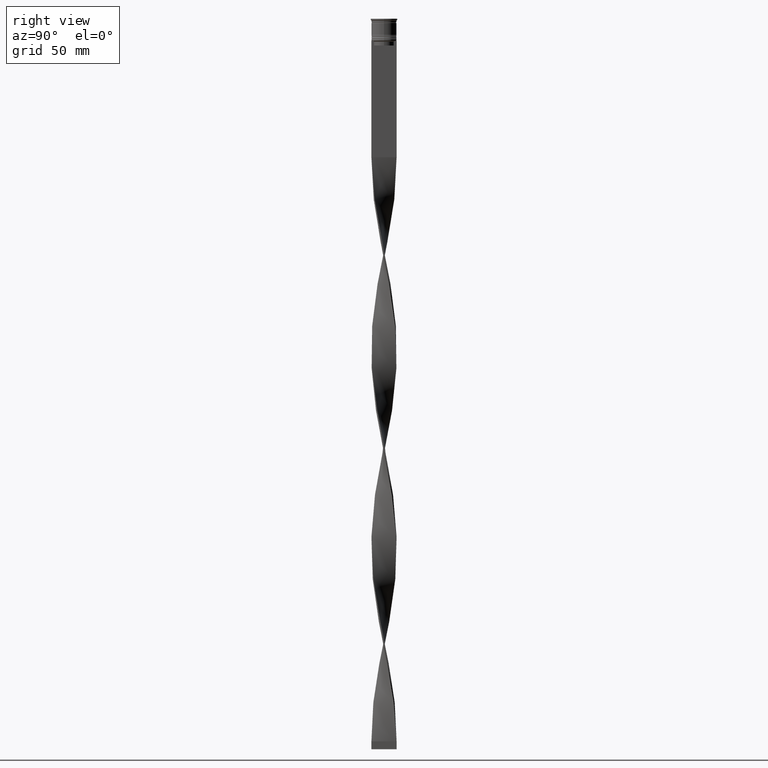
[diagram: clean part render]
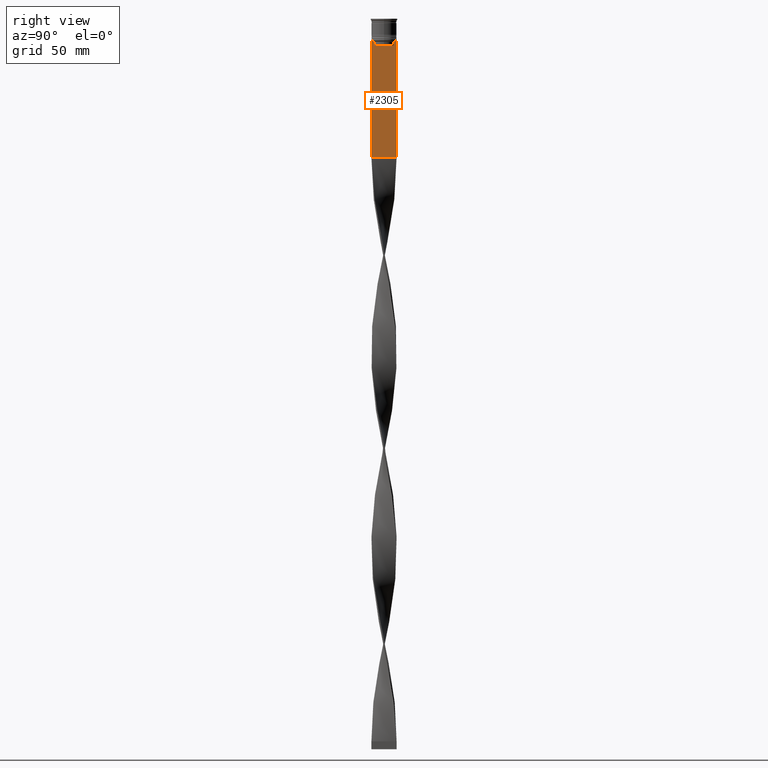
[diagram: same view with one face highlighted and labeled with its STEP entity id]
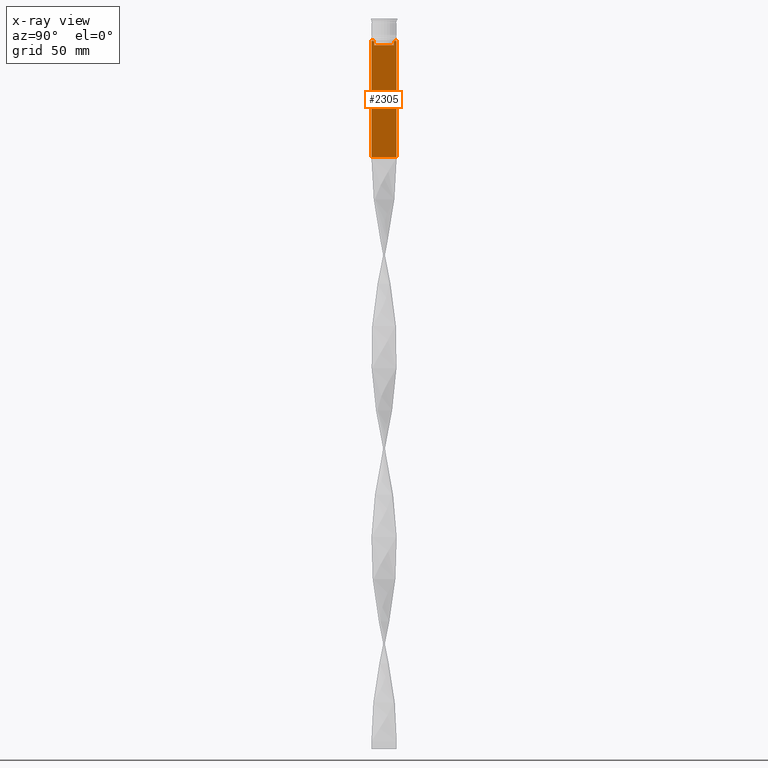
[diagram: x-ray of the same camera — body ghosted, the highlighted face saturated]
A machine part, right view. The second image highlights one B-rep face of the part: STEP entity #2305.
The next image is the same camera in x-ray: the body ghosted, the highlighted face saturated — about 0% of this face is hidden behind the body in this view.
In plain terms, the highlighted planar face has unit normal (-1, 0, 0).
Its self-contained STEP definition (entity closure, byte-faithful):
#104 = DIRECTION ( 'NONE',  ( 0.000000000000000000, -1.000000000000000000, 0.000000000000000000 ) ) ;
#139 = ORIENTED_EDGE ( 'NONE', *, *, #749, .T. ) ;
#232 = LINE ( 'NONE', #1569, #315 ) ;
#315 = VECTOR ( 'NONE', #970, 1000.000000000000000 ) ;
#323 = VERTEX_POINT ( 'NONE', #4150 ) ;
#336 = PLANE ( 'NONE',  #3440 ) ;
#398 = ORIENTED_EDGE ( 'NONE', *, *, #1879, .T. ) ;
#454 = CARTESIAN_POINT ( 'NONE',  ( 0.5000000000000001110, -6.881860213634098500, -14.00000000000000178 ) ) ;
#553 = CARTESIAN_POINT ( 'NONE',  ( 0.5000000000000001110, 6.380438856379708312, -17.00000000000000000 ) ) ;
#595 = VECTOR ( 'NONE', #681, 1000.000000000000000 ) ;
#621 = LINE ( 'NONE', #2636, #795 ) ;
#645 = EDGE_CURVE ( 'NONE', #1156, #1522, #3200, .T. ) ;
#654 = VECTOR ( 'NONE', #2241, 1000.000000000000000 ) ;
#681 = DIRECTION ( 'NONE',  ( -0.000000000000000000, -0.000000000000000000, 1.000000000000000000 ) ) ;
#730 = CARTESIAN_POINT ( 'NONE',  ( 0.5000000000000001110, 6.881860213634098500, -14.00000000000000178 ) ) ;
#743 = CARTESIAN_POINT ( 'NONE',  ( 0.5000000000000001110, -6.714736947305993908, -14.16668390685738821 ) ) ;
#749 = EDGE_CURVE ( 'NONE', #1889, #3849, #3907, .T. ) ;
#795 = VECTOR ( 'NONE', #2898, 1000.000000000000000 ) ;
#824 = CARTESIAN_POINT ( 'NONE',  ( 0.5000000000000001110, -6.380438856379708312, -14.50000000000000000 ) ) ;
#829 = ORIENTED_EDGE ( 'NONE', *, *, #3149, .T. ) ;
#904 = CARTESIAN_POINT ( 'NONE',  ( 0.5000000000000001110, 6.399999999999999467, -17.00000000000000000 ) ) ;
#960 = LINE ( 'NONE', #2479, #3305 ) ;
#967 = CARTESIAN_POINT ( 'NONE',  ( 0.5000000000000001110, -6.380438856379708312, 0.000000000000000000 ) ) ;
#970 = DIRECTION ( 'NONE',  ( 0.000000000000000000, -1.000000000000000000, 0.000000000000000000 ) ) ;
#1004 = FACE_OUTER_BOUND ( 'NONE', #2105, .T. ) ;
#1010 = CARTESIAN_POINT ( 'NONE',  ( 0.5000000000000001110, 6.881860213634098500, -14.00000000000000178 ) ) ;
#1062 = VERTEX_POINT ( 'NONE', #2289 ) ;
#1100 = CARTESIAN_POINT ( 'NONE',  ( 0.5000000000000001110, 6.547597841304911626, -14.33335192459222718 ) ) ;
#1104 = CARTESIAN_POINT ( 'NONE',  ( 0.5000000000000001110, -7.884161337770806632, -14.00000000000000178 ) ) ;
#1156 = VERTEX_POINT ( 'NONE', #1010 ) ;
#1164 = DIRECTION ( 'NONE',  ( 0.000000000000000000, -1.000000000000000000, 0.000000000000000000 ) ) ;
#1219 = LINE ( 'NONE', #3223, #2622 ) ;
#1408 = CARTESIAN_POINT ( 'NONE',  ( 0.5000000000000001110, 6.380438856379708312, -14.50000000000000000 ) ) ;
#1522 = VERTEX_POINT ( 'NONE', #1825 ) ;
#1555 = EDGE_CURVE ( 'NONE', #1773, #2151, #960, .T. ) ;
#1569 = CARTESIAN_POINT ( 'NONE',  ( 0.5000000000000001110, -8.000000000000003553, -14.00000000000000178 ) ) ;
#1687 = ORIENTED_EDGE ( 'NONE', *, *, #645, .T. ) ;
#1710 = VECTOR ( 'NONE', #1164, 1000.000000000000000 ) ;
#1761 = CARTESIAN_POINT ( 'NONE',  ( 0.5000000000000001110, 6.714736947114692711, -14.16668390704818847 ) ) ;
#1773 = VERTEX_POINT ( 'NONE', #2785 ) ;
#1820 = CARTESIAN_POINT ( 'NONE',  ( 0.5000000000000001110, -6.380438856379708312, -14.50000000000000000 ) ) ;
#1825 = CARTESIAN_POINT ( 'NONE',  ( 0.5000000000000001110, 6.380438856379708312, -14.50000000000000000 ) ) ;
#1826 = LINE ( 'NONE', #2104, #1710 ) ;
#1879 = EDGE_CURVE ( 'NONE', #2151, #2840, #4257, .T. ) ;
#1889 = VERTEX_POINT ( 'NONE', #553 ) ;
#1976 = CARTESIAN_POINT ( 'NONE',  ( 0.5000000000000001110, -8.000000000000003553, 2.031219541881394530 ) ) ;
#2000 = DIRECTION ( 'NONE',  ( -1.000000000000000000, 0.000000000000000000, 0.000000000000000000 ) ) ;
#2038 = DIRECTION ( 'NONE',  ( 0.000000000000000000, 0.000000000000000000, 1.000000000000000000 ) ) ;
#2104 = CARTESIAN_POINT ( 'NONE',  ( 0.5000000000000001110, -8.000000000000003553, -14.00000000000000178 ) ) ;
#2105 = EDGE_LOOP ( 'NONE', ( #3816, #1687, #3989, #139, #2347, #2866, #4032, #2664, #3700, #398, #2907, #829 ) ) ;
#2122 = CARTESIAN_POINT ( 'NONE',  ( 0.5000000000000001110, -6.547597841511247019, -14.33335192438652150 ) ) ;
#2151 = VERTEX_POINT ( 'NONE', #3570 ) ;
#2241 = DIRECTION ( 'NONE',  ( 0.000000000000000000, 1.000000000000000000, 0.000000000000000000 ) ) ;
#2289 = CARTESIAN_POINT ( 'NONE',  ( 0.5000000000000001110, 7.884161337770806632, -14.00000000000000178 ) ) ;
#2305 = ADVANCED_FACE ( 'NONE', ( #1004 ), #336, .F. ) ;
#2347 = ORIENTED_EDGE ( 'NONE', *, *, #4153, .T. ) ;
#2479 = CARTESIAN_POINT ( 'NONE',  ( 0.5000000000000001110, -8.000000000000003553, 2.031219541881394530 ) ) ;
#2514 = EDGE_CURVE ( 'NONE', #3742, #2792, #4126, .T. ) ;
#2531 = VECTOR ( 'NONE', #2831, 1000.000000000000000 ) ;
#2549 = CARTESIAN_POINT ( 'NONE',  ( 0.5000000000000001110, -6.881860213634098500, -14.00000000000000178 ) ) ;
#2551 = CARTESIAN_POINT ( 'NONE',  ( 0.5000000000000001110, -6.380438856379708312, -17.00000000000000000 ) ) ;
#2573 = DIRECTION ( 'NONE',  ( 0.000000000000000000, -1.000000000000000000, 0.000000000000000000 ) ) ;
#2622 = VECTOR ( 'NONE', #4217, 1000.000000000000000 ) ;
#2624 = DIRECTION ( 'NONE',  ( 0.000000000000000000, 0.000000000000000000, -1.000000000000000000 ) ) ;
#2636 = CARTESIAN_POINT ( 'NONE',  ( 0.5000000000000001110, 7.999999999999996447, 2.031219541881394530 ) ) ;
#2664 = ORIENTED_EDGE ( 'NONE', *, *, #3695, .T. ) ;
#2723 = LINE ( 'NONE', #3732, #3954 ) ;
#2785 = CARTESIAN_POINT ( 'NONE',  ( 0.5000000000000001110, -8.000000000000003553, -14.00000000000000178 ) ) ;
#2792 = VERTEX_POINT ( 'NONE', #2549 ) ;
#2831 = DIRECTION ( 'NONE',  ( 0.000000000000000000, -1.000000000000000000, 0.000000000000000000 ) ) ;
#2840 = VERTEX_POINT ( 'NONE', #3957 ) ;
#2866 = ORIENTED_EDGE ( 'NONE', *, *, #2514, .T. ) ;
#2890 = EDGE_CURVE ( 'NONE', #1062, #1156, #232, .T. ) ;
#2898 = DIRECTION ( 'NONE',  ( 0.000000000000000000, 0.000000000000000000, -1.000000000000000000 ) ) ;
#2907 = ORIENTED_EDGE ( 'NONE', *, *, #2922, .F. ) ;
#2922 = EDGE_CURVE ( 'NONE', #323, #2840, #621, .T. ) ;
#2924 = LINE ( 'NONE', #3204, #3244 ) ;
#3149 = EDGE_CURVE ( 'NONE', #323, #1062, #1826, .T. ) ;
#3200 = B_SPLINE_CURVE_WITH_KNOTS ( 'NONE', 3,
 ( #730, #1761, #1100, #1408 ),
 .UNSPECIFIED., .F., .F.,
 ( 4, 4 ),
 ( 0.01172465562756038263, 0.01243276816391822651 ),
 .UNSPECIFIED. ) ;
#3204 = CARTESIAN_POINT ( 'NONE',  ( 0.5000000000000001110, -8.000000000000003553, -14.00000000000000178 ) ) ;
#3223 = CARTESIAN_POINT ( 'NONE',  ( 0.5000000000000001110, 6.380438856379708312, 0.000000000000000000 ) ) ;
#3244 = VECTOR ( 'NONE', #2573, 1000.000000000000000 ) ;
#3305 = VECTOR ( 'NONE', #2624, 1000.000000000000000 ) ;
#3440 = AXIS2_PLACEMENT_3D ( 'NONE', #1976, #2000, #2038 ) ;
#3473 = EDGE_CURVE ( 'NONE', #2792, #3544, #2723, .T. ) ;
#3544 = VERTEX_POINT ( 'NONE', #1104 ) ;
#3570 = CARTESIAN_POINT ( 'NONE',  ( 0.5000000000000001110, -8.000000000000003553, -88.00000000000000000 ) ) ;
#3638 = LINE ( 'NONE', #967, #595 ) ;
#3695 = EDGE_CURVE ( 'NONE', #3544, #1773, #2924, .T. ) ;
#3700 = ORIENTED_EDGE ( 'NONE', *, *, #1555, .T. ) ;
#3732 = CARTESIAN_POINT ( 'NONE',  ( 0.5000000000000001110, -8.000000000000003553, -14.00000000000000178 ) ) ;
#3742 = VERTEX_POINT ( 'NONE', #824 ) ;
#3816 = ORIENTED_EDGE ( 'NONE', *, *, #2890, .T. ) ;
#3833 = EDGE_CURVE ( 'NONE', #1522, #1889, #1219, .T. ) ;
#3849 = VERTEX_POINT ( 'NONE', #2551 ) ;
#3907 = LINE ( 'NONE', #904, #2531 ) ;
#3954 = VECTOR ( 'NONE', #104, 1000.000000000000000 ) ;
#3957 = CARTESIAN_POINT ( 'NONE',  ( 0.5000000000000001110, 7.999999999999996447, -88.00000000000000000 ) ) ;
#3989 = ORIENTED_EDGE ( 'NONE', *, *, #3833, .T. ) ;
#4032 = ORIENTED_EDGE ( 'NONE', *, *, #3473, .T. ) ;
#4126 = B_SPLINE_CURVE_WITH_KNOTS ( 'NONE', 3,
 ( #1820, #2122, #743, #454 ),
 .UNSPECIFIED., .F., .F.,
 ( 4, 4 ),
 ( 0.02996184199614751464, 0.03067452609193705923 ),
 .UNSPECIFIED. ) ;
#4150 = CARTESIAN_POINT ( 'NONE',  ( 0.5000000000000001110, 7.999999999999996447, -14.00000000000000178 ) ) ;
#4153 = EDGE_CURVE ( 'NONE', #3849, #3742, #3638, .T. ) ;
#4217 = DIRECTION ( 'NONE',  ( 0.000000000000000000, 0.000000000000000000, -1.000000000000000000 ) ) ;
#4237 = CARTESIAN_POINT ( 'NONE',  ( 0.5000000000000001110, -8.000000000000003553, -88.00000000000000000 ) ) ;
#4257 = LINE ( 'NONE', #4237, #654 ) ;